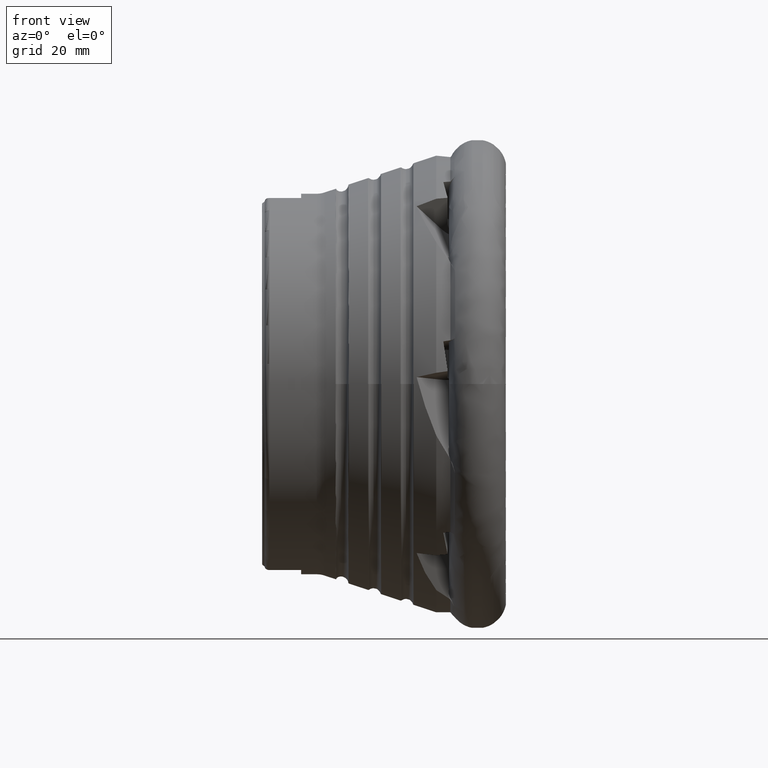
[diagram: clean part render]
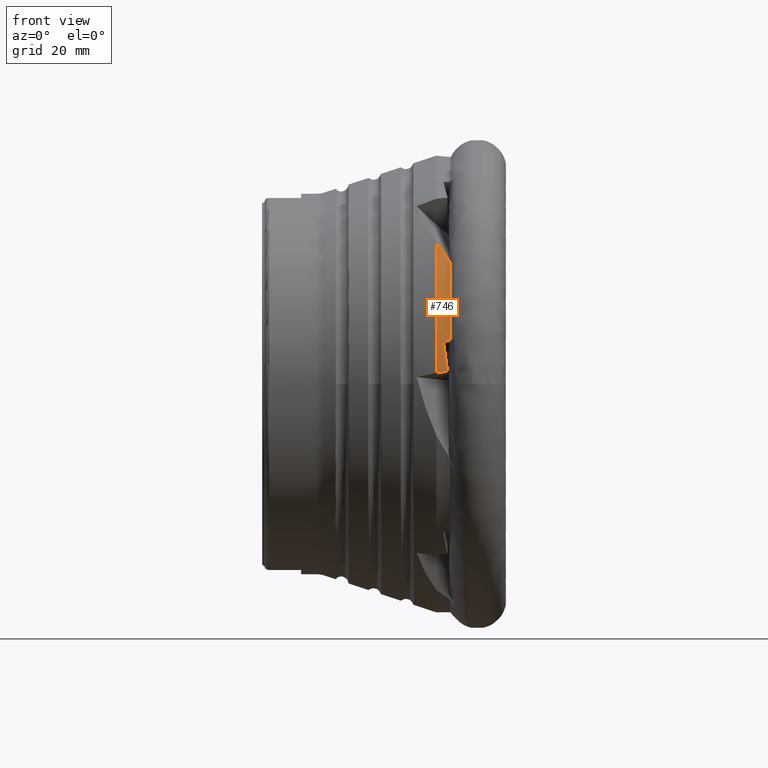
[diagram: same view with one face highlighted and labeled with its STEP entity id]
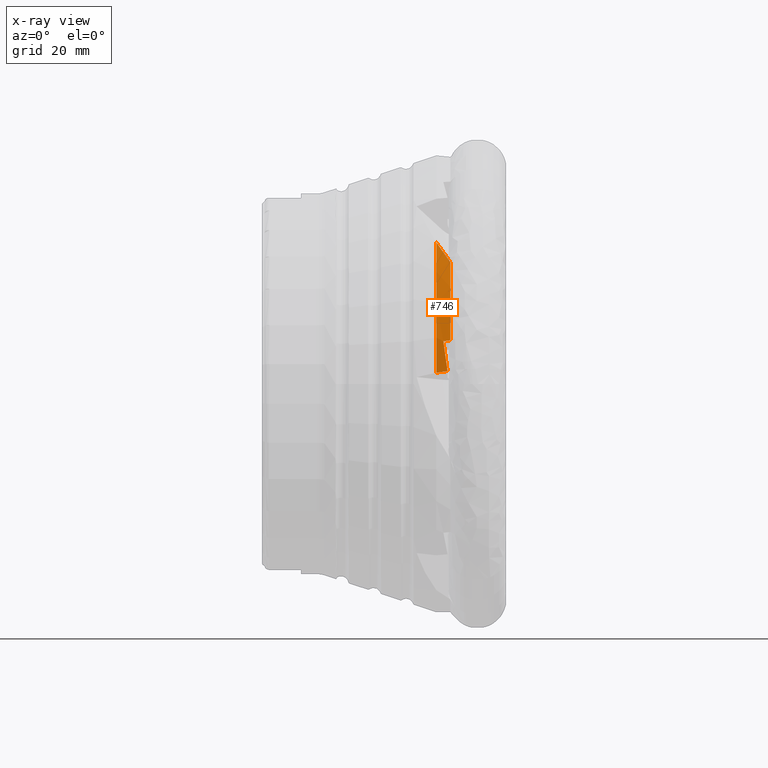
[diagram: x-ray of the same camera — body ghosted, the highlighted face saturated]
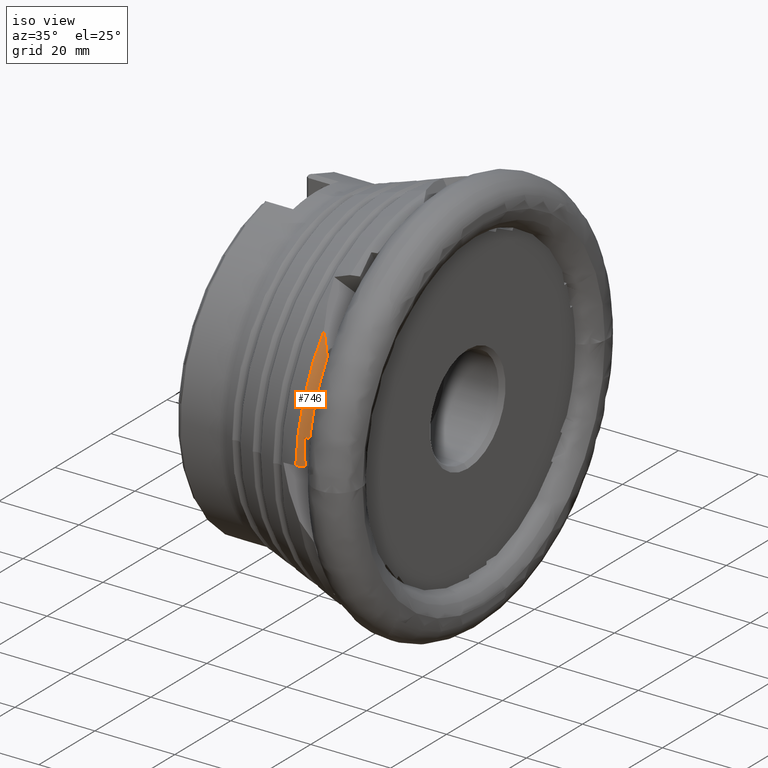
[diagram: same view with one face highlighted and labeled with its STEP entity id]
A machine part, front view. The second image highlights one B-rep face of the part: STEP entity #746.
The next image is the same camera in x-ray: the body ghosted, the highlighted face saturated — about 0% of this face is hidden behind the body in this view.
A second angle (iso view) of the same face is appended — the face is thin or edge-on in the first view.
In plain terms, the highlighted cylindrical surface (partial cylindrical patch) has radius 46.8 mm, axis along (1, -0, -0).
Its self-contained STEP definition (entity closure, byte-faithful):
#30 = ORIENTED_EDGE ( 'NONE', *, *, #8291, .T. ) ;
#59 = CARTESIAN_POINT ( 'NONE',  ( -10.17414658694263900, -39.52299752987596500, 25.06337300231696500 ) ) ;
#115 = CARTESIAN_POINT ( 'NONE',  ( -10.16205662321210700, -39.54375883205161600, 25.03063403719619700 ) ) ;
#125 = CARTESIAN_POINT ( 'NONE',  ( -13.00000000000000000, 0.0000000000000000000, 0.0000000000000000000 ) ) ;
#253 = EDGE_CURVE ( 'NONE', #3932, #7041, #2657, .T. ) ;
#343 = ORIENTED_EDGE ( 'NONE', *, *, #8713, .F. ) ;
#448 = DIRECTION ( 'NONE',  ( 1.000000000000000000, -0.0000000000000000000, -0.0000000000000000000 ) ) ;
#746 = ADVANCED_FACE ( 'NONE', ( #6232 ), #6647, .T. ) ;
#753 = CARTESIAN_POINT ( 'NONE',  ( -12.22664082558504200, -46.73814238294912800, 2.407951475598838300 ) ) ;
#885 = CARTESIAN_POINT ( 'NONE',  ( -10.13761003874707700, -39.58514405287334600, 24.96519286135060200 ) ) ;
#1726 = CARTESIAN_POINT ( 'NONE',  ( -10.10000000000000100, -39.64674229574864500, 24.86716359648793800 ) ) ;
#1844 = ORIENTED_EDGE ( 'NONE', *, *, #9117, .T. ) ;
#1907 = DIRECTION ( 'NONE',  ( 1.000000000000000000, -0.0000000000000000000, -0.0000000000000000000 ) ) ;
#1913 = DIRECTION ( 'NONE',  ( 1.000000000000000000, -0.0000000000000000000, -0.0000000000000000000 ) ) ;
#2036 = ORIENTED_EDGE ( 'NONE', *, *, #7845, .F. ) ;
#2152 = CARTESIAN_POINT ( 'NONE',  ( -10.96396019533924700, -46.61042429979741500, 4.685414612325622800 ) ) ;
#2364 = CARTESIAN_POINT ( 'NONE',  ( -10.10000000000000100, -45.93559312597196300, 8.953283429287674600 ) ) ;
#2642 = VERTEX_POINT ( 'NONE', #6175 ) ;
#2657 = CIRCLE ( 'NONE', #5593, 46.79999999999999700 ) ;
#2683 = CARTESIAN_POINT ( 'NONE',  ( 0.0000000000000000000, 0.0000000000000000000, 0.0000000000000000000 ) ) ;
#2789 = EDGE_LOOP ( 'NONE', ( #2036, #1844, #9631, #343, #30, #6549, #3150 ) ) ;
#3150 = ORIENTED_EDGE ( 'NONE', *, *, #6622, .F. ) ;
#3383 = CARTESIAN_POINT ( 'NONE',  ( -13.00000000000000500, -36.68791744701396600, 29.05575181269773600 ) ) ;
#3386 = VERTEX_POINT ( 'NONE', #10925 ) ;
#3413 =( BOUNDED_CURVE ( )  B_SPLINE_CURVE ( 3, ( #4513, #6222, #2152, #4741 ),
 .UNSPECIFIED., .F., .F. ) 
 B_SPLINE_CURVE_WITH_KNOTS ( ( 4, 4 ),
 ( 4.748623318569633200, 4.880596837297585600 ),
 .UNSPECIFIED. ) 
 CURVE ( )  GEOMETRIC_REPRESENTATION_ITEM ( )  RATIONAL_B_SPLINE_CURVE ( ( 1.000000000000000000, 0.9985491091062819200, 0.9985491091062819200, 1.000000000000000000 ) ) 
 REPRESENTATION_ITEM ( '' )  );
#3533 =( BOUNDED_CURVE ( )  B_SPLINE_CURVE ( 3, ( #4132, #4057, #753, #10064 ),
 .UNSPECIFIED., .F., .F. ) 
 B_SPLINE_CURVE_WITH_KNOTS ( ( 4, 4 ),
 ( 1.739004183707793600, 1.746079802210118900 ),
 .UNSPECIFIED. ) 
 CURVE ( )  GEOMETRIC_REPRESENTATION_ITEM ( )  RATIONAL_B_SPLINE_CURVE ( ( 1.000000000000000000, 0.9999958279729188600, 0.9999958279729188600, 1.000000000000000000 ) ) 
 REPRESENTATION_ITEM ( '' )  );
#3706 = VERTEX_POINT ( 'NONE', #8377 ) ;
#3874 = CARTESIAN_POINT ( 'NONE',  ( -10.10000000000000100, 0.0000000000000000000, 0.0000000000000000000 ) ) ;
#3932 = VERTEX_POINT ( 'NONE', #7889 ) ;
#4057 = CARTESIAN_POINT ( 'NONE',  ( -11.45280194413136400, -46.73233314702400800, 2.518178379945579700 ) ) ;
#4132 = CARTESIAN_POINT ( 'NONE',  ( -10.67849304106928800, -46.72613398650486300, 2.628384042562134300 ) ) ;
#4219 = AXIS2_PLACEMENT_3D ( 'NONE', #2683, #1907, #4640 ) ;
#4513 = CARTESIAN_POINT ( 'NONE',  ( -11.54136626702169400, -45.97393844350893500, 8.754255193473115400 ) ) ;
#4640 = DIRECTION ( 'NONE',  ( 0.0000000000000000000, 0.0000000000000000000, -1.000000000000000000 ) ) ;
#4741 = CARTESIAN_POINT ( 'NONE',  ( -10.67849304106928800, -46.72613398650486300, 2.628384042562134300 ) ) ;
#5380 = DIRECTION ( 'NONE',  ( 0.0000000000000000000, 0.0000000000000000000, -1.000000000000000000 ) ) ;
#5593 = AXIS2_PLACEMENT_3D ( 'NONE', #3874, #448, #8050 ) ;
#5730 = VERTEX_POINT ( 'NONE', #8071 ) ;
#5789 = CARTESIAN_POINT ( 'NONE',  ( -11.54136626702169400, -45.97393844350893500, 8.754255193473115400 ) ) ;
#5864 = CARTESIAN_POINT ( 'NONE',  ( -11.06094667967975400, -45.96130034474996500, 8.820625565543322100 ) ) ;
#5901 = AXIS2_PLACEMENT_3D ( 'NONE', #125, #1913, #5380 ) ;
#6175 = CARTESIAN_POINT ( 'NONE',  ( -10.67849304106928800, -46.72613398650486300, 2.628384042562134300 ) ) ;
#6222 = CARTESIAN_POINT ( 'NONE',  ( -11.25200252197877400, -46.35932813899894700, 6.730338624256543100 ) ) ;
#6232 = FACE_OUTER_BOUND ( 'NONE', #2789, .T. ) ;
#6486 = CARTESIAN_POINT ( 'NONE',  ( -10.17414658694263900, -39.52299752987596500, 25.06337300231696500 ) ) ;
#6549 = ORIENTED_EDGE ( 'NONE', *, *, #6830, .T. ) ;
#6622 = EDGE_CURVE ( 'NONE', #2642, #5730, #3533, .T. ) ;
#6647 = CYLINDRICAL_SURFACE ( 'NONE', #4219, 46.79999999999999700 ) ;
#6811 = CARTESIAN_POINT ( 'NONE',  ( -10.11262683832105000, -39.62625515949162000, 24.89982708094241200 ) ) ;
#6830 = EDGE_CURVE ( 'NONE', #3386, #5730, #10036, .T. ) ;
#6952 = CARTESIAN_POINT ( 'NONE',  ( -10.17414658694263900, -39.52299752987596500, 25.06337300231696500 ) ) ;
#7028 = B_SPLINE_CURVE_WITH_KNOTS ( 'NONE', 3,
 ( #6952, #115, #885, #6811, #1726 ),
 .UNSPECIFIED., .F., .F.,
 ( 4, 1, 4 ),
 ( 0.008575751300567020400, 0.008698862302755027600, 0.008821973304943036400 ),
 .UNSPECIFIED. ) ;
#7041 = VERTEX_POINT ( 'NONE', #9633 ) ;
#7845 = EDGE_CURVE ( 'NONE', #3706, #2642, #3413, .T. ) ;
#7889 = CARTESIAN_POINT ( 'NONE',  ( -10.10000000000000100, -39.64674229574864500, 24.86716359648793800 ) ) ;
#8050 = DIRECTION ( 'NONE',  ( 0.0000000000000000000, 0.0000000000000000000, -1.000000000000000000 ) ) ;
#8071 = CARTESIAN_POINT ( 'NONE',  ( -13.00000000000000200, -46.74356162157135200, 2.297704709130798500 ) ) ;
#8291 = EDGE_CURVE ( 'NONE', #9396, #3386, #10143, .T. ) ;
#8377 = CARTESIAN_POINT ( 'NONE',  ( -11.54136626702169400, -45.97393844350893500, 8.754255193473115400 ) ) ;
#8713 = EDGE_CURVE ( 'NONE', #9396, #3932, #7028, .T. ) ;
#9033 = CARTESIAN_POINT ( 'NONE',  ( -11.18014288059130100, -38.64808554016757800, 26.44304142942692000 ) ) ;
#9117 = EDGE_CURVE ( 'NONE', #3706, #7041, #9662, .T. ) ;
#9363 = CARTESIAN_POINT ( 'NONE',  ( -12.12295469517360200, -37.70219535879413500, 27.77505033453261900 ) ) ;
#9396 = VERTEX_POINT ( 'NONE', #59 ) ;
#9631 = ORIENTED_EDGE ( 'NONE', *, *, #253, .F. ) ;
#9633 = CARTESIAN_POINT ( 'NONE',  ( -10.10000000000000100, -45.93559312597196300, 8.953283429287674600 ) ) ;
#9662 =( BOUNDED_CURVE ( )  B_SPLINE_CURVE ( 3, ( #5789, #5864, #10004, #2364 ),
 .UNSPECIFIED., .F., .F. ) 
 B_SPLINE_CURVE_WITH_KNOTS ( ( 4, 4 ),
 ( 4.676154642199744400, 4.680485595068626400 ),
 .UNSPECIFIED. ) 
 CURVE ( )  GEOMETRIC_REPRESENTATION_ITEM ( )  RATIONAL_B_SPLINE_CURVE ( ( 1.000000000000000000, 0.9999984369045480400, 0.9999984369045480400, 1.000000000000000000 ) ) 
 REPRESENTATION_ITEM ( '' )  );
#10004 = CARTESIAN_POINT ( 'NONE',  ( -10.58049050634030900, -45.94851855225847000, 8.886968414515047600 ) ) ;
#10036 = CIRCLE ( 'NONE', #5901, 46.79999999999999700 ) ;
#10064 = CARTESIAN_POINT ( 'NONE',  ( -13.00000000000000200, -46.74356162157135200, 2.297704709130798500 ) ) ;
#10143 =( BOUNDED_CURVE ( )  B_SPLINE_CURVE ( 3, ( #6486, #9033, #9363, #3383 ),
 .UNSPECIFIED., .F., .F. ) 
 B_SPLINE_CURVE_WITH_KNOTS ( ( 4, 4 ),
 ( 2.436235307056665400, 2.540911461090496400 ),
 .UNSPECIFIED. ) 
 CURVE ( )  GEOMETRIC_REPRESENTATION_ITEM ( )  RATIONAL_B_SPLINE_CURVE ( ( 1.000000000000000000, 0.9990871169796851100, 0.9990871169796851100, 1.000000000000000000 ) ) 
 REPRESENTATION_ITEM ( '' )  );
#10925 = CARTESIAN_POINT ( 'NONE',  ( -13.00000000000000500, -36.68791744701396600, 29.05575181269773600 ) ) ;